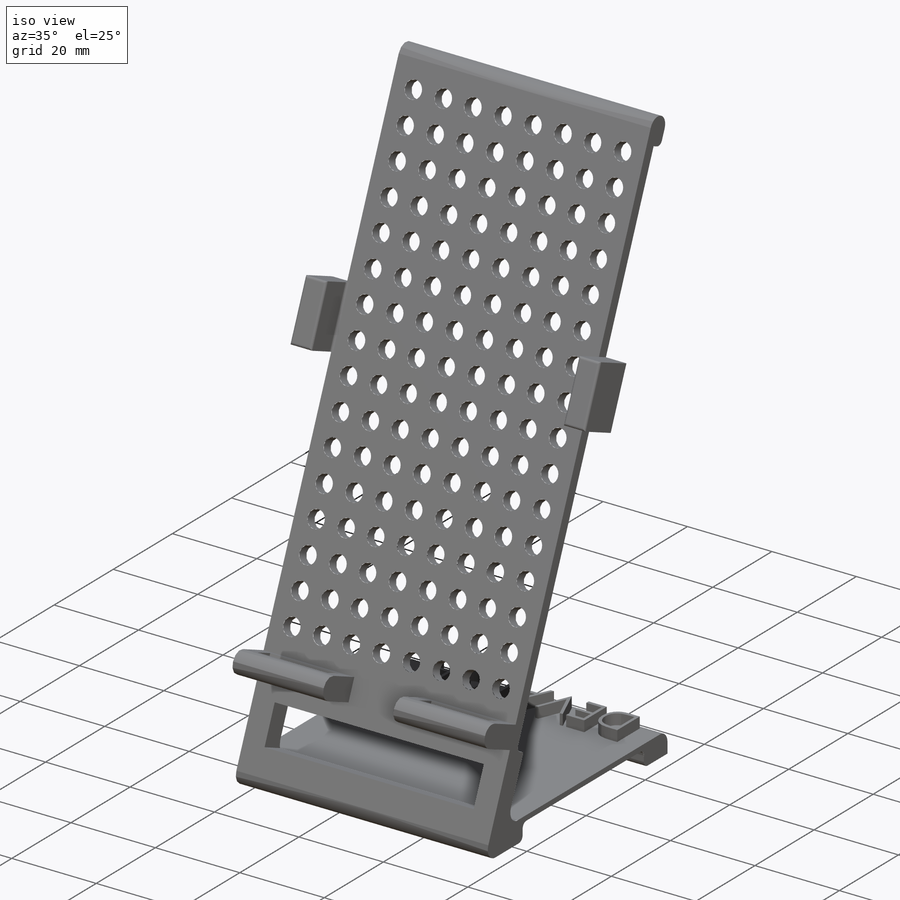
[diagram: iso view]
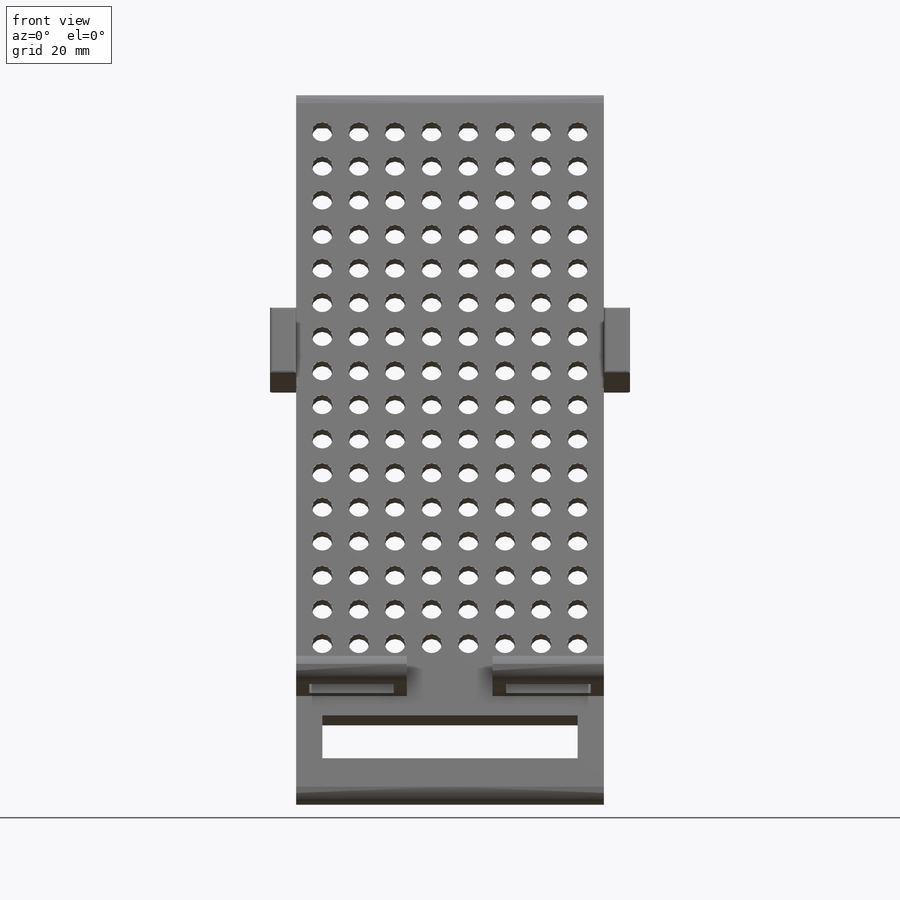
[diagram: front view]
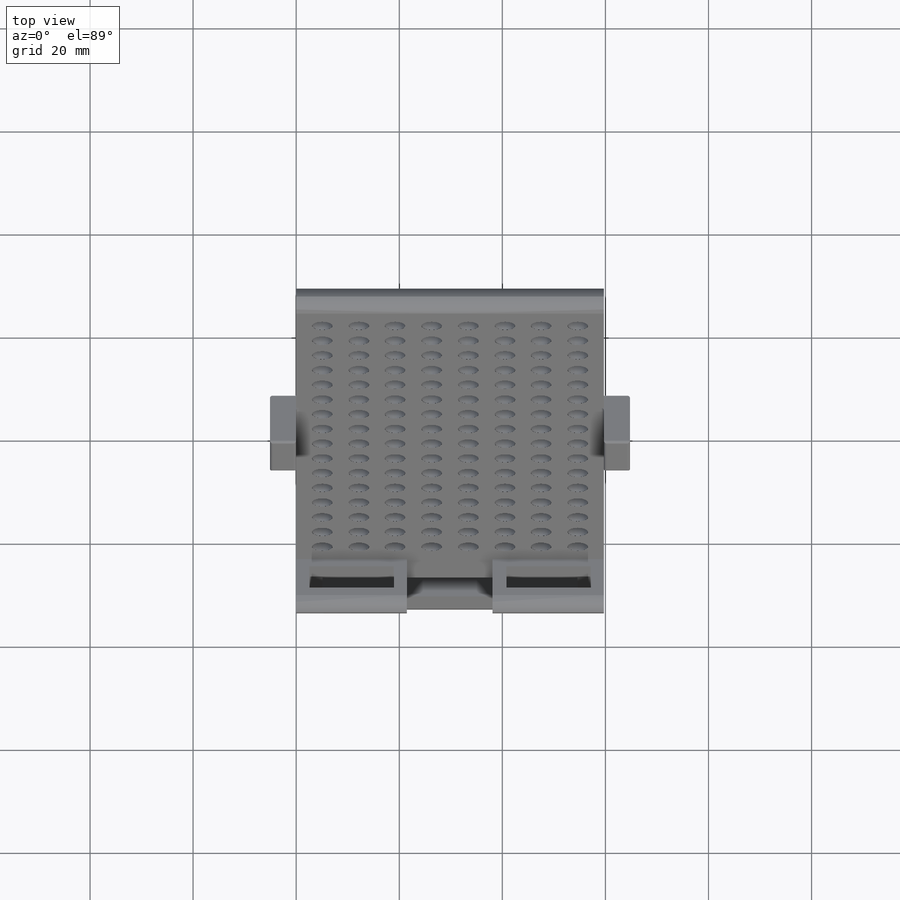
[diagram: top view]
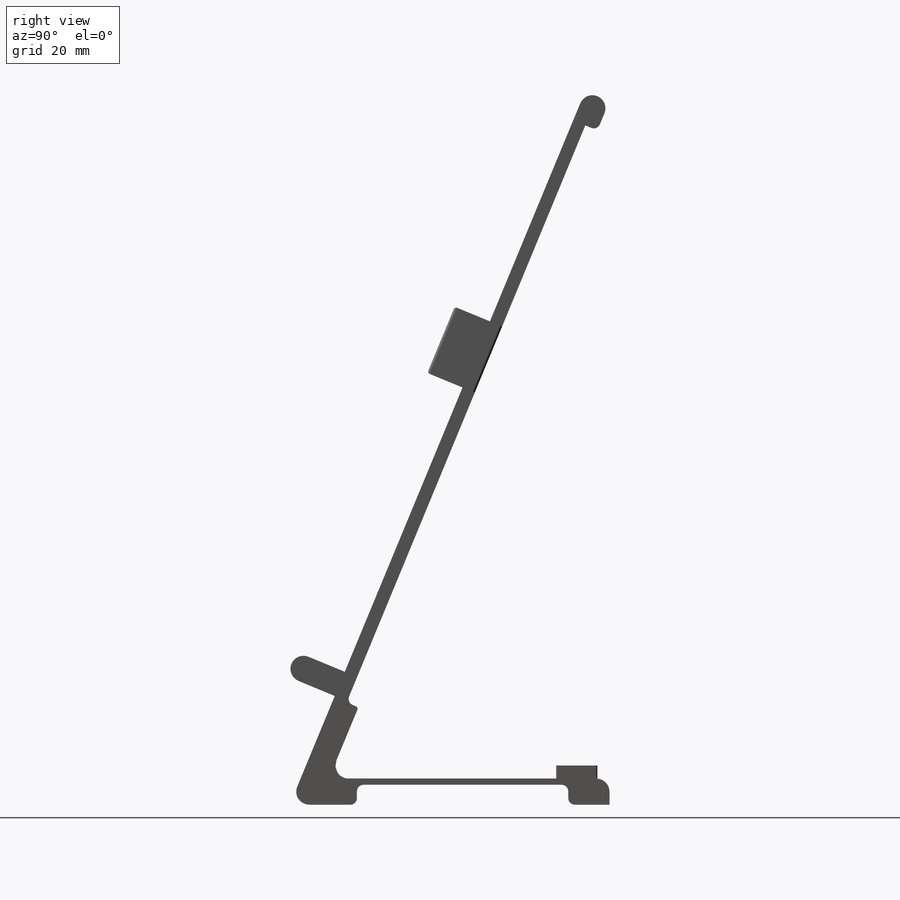
[diagram: right view]
SOLIDWORKS PART (.sldprt)
format: sldprt  version: not decoded by parser v0  size: 681,472 bytes
history: native  units: mm
features: sketch x10, fillet x6, extrude x4, cut_extrude x3, material x1, hole x1 (+12 scaffold rows collapsed)
feature tree (37):
  scaffold x12  (default folders/planes/origin — collapsed)
  material  "Material <not specified>"
  sketch  "Sketch1"  dims[c1.D1=~99.253024mm c2.D1=67.5deg c3.D1=5.08mm c3.D2=0.0mm c3.D3=~131.428555mm]
  extrude  "Boss-Extrude3"  Depth=59.69mm
  sketch  "Sketch2"  dims[D1=~21.471077mm D2=21.59mm D3=~23.531814mm]
  cut_extrude  "Cut-Extrude1"  Depth=59.69mm
  fillet  "Fillet4"  Radius=2.54mm
  fillet  "Fillet5"  Radius=2.54mm
  hole  "Ø9.0 (9) Diameter Hole1"  Diameter=4mm Depth=25.4mm
  sketch  "Sketch5"  dims[D1=~7.003875mm D2=7.112mm D3=3.556mm D4=7.112mm D5=~7.209871mm D6=3.556mm D7=3.556mm D8=3.556mm]
  sketch  "Sketch3"  dims[hole-wizard template sketch: 47 standard entries collapsed; hole parameters kept: c15.Hole Depth=25.4mm c15.D3=~14.816244mm c15.Drill Angle=118.0deg]
  fillet  "Fillet7"  Radius=1.27mm
  sketch  "Sketch9"  dims[D1=2.54mm D2=2.54mm D3=1.524mm D4=1.524mm]
  cut_extrude  "Cut-Extrude3"  [1 undecoded]
  sketch  "Sketch10"  dims[D1=5.08mm D2=5.08mm]
  cut_extrude  "Cut-Extrude4"  [1 undecoded]
  fillet  "Fillet8"  Radius=2.54mm
  fillet  "Fillet9"  Radius=0.508mm
  sketch  "Sketch11"
  extrude  "Boss-Extrude4"  Depth=2.54mm
  sketch  "Sketch13"
  extrude  "Boss-Extrude5"  Depth=5.08mm
  sketch  "Sketch14"
  sketch  "Sketch15"
  extrude  "Boss-Extrude6"  Depth=5.08mm
  fillet  "Fillet10"  Radius=0.508mm
decode coverage: 18 of 24 modeling features carry decoded parameters
note: ~ marks probable driven/reference dimensions
note: 2 parameter values undecoded
note: suppression state not decoded; provenance and decode notes live in map.json
